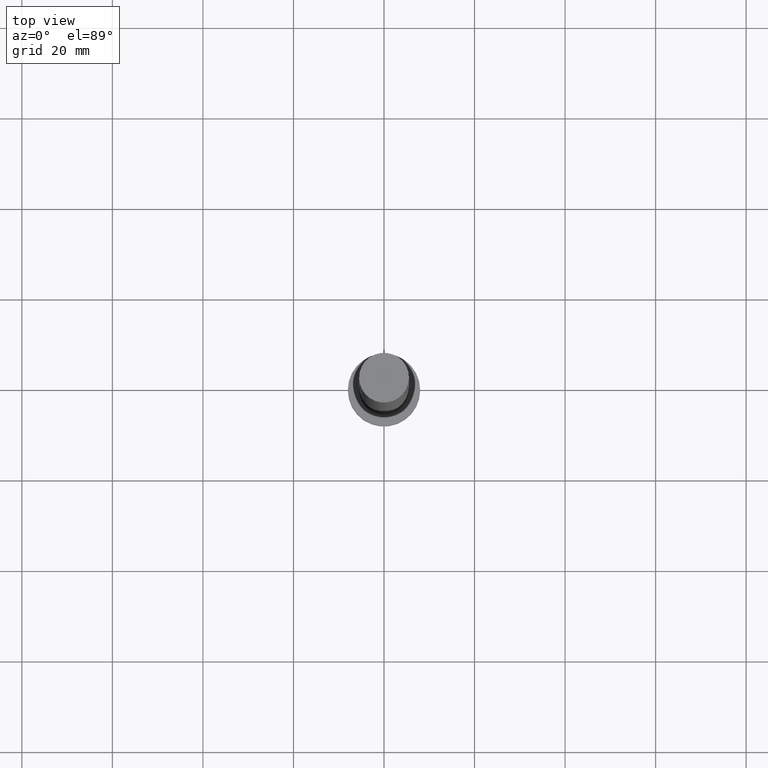
[diagram: clean part render]
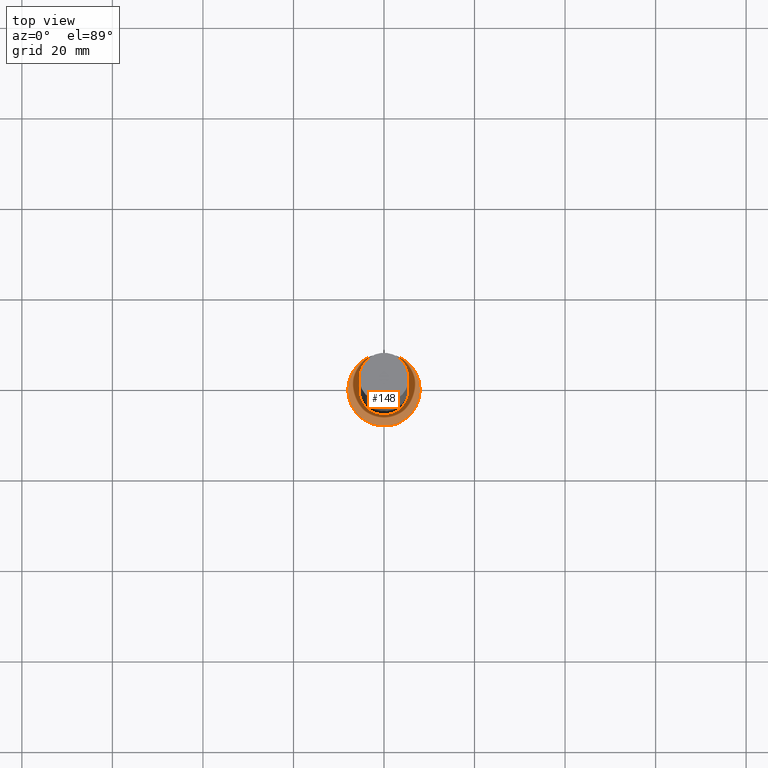
[diagram: same view with one face highlighted and labeled with its STEP entity id]
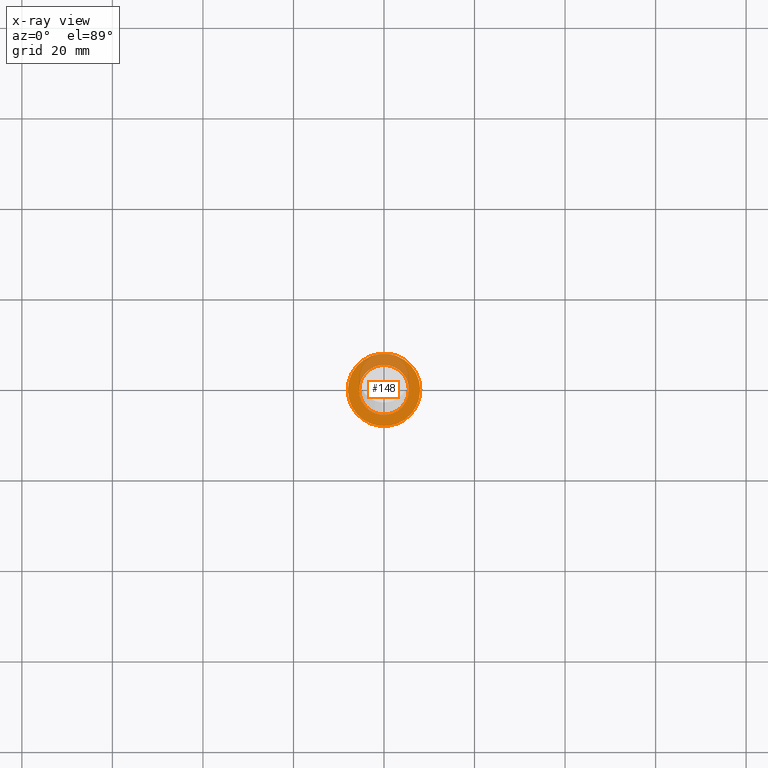
[diagram: x-ray of the same camera — body ghosted, the highlighted face saturated]
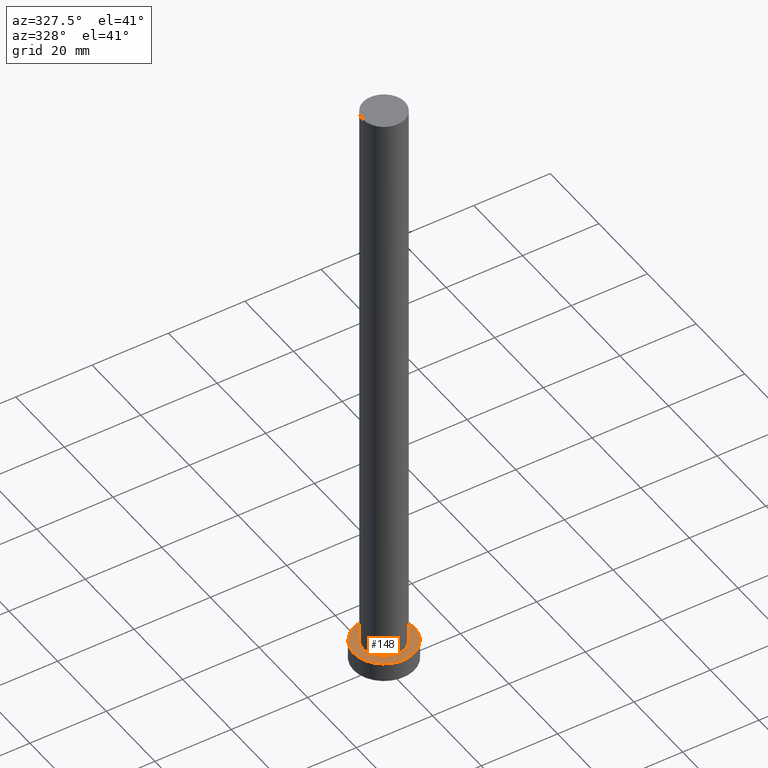
[diagram: same view with one face highlighted and labeled with its STEP entity id]
A machine part, top view. The second image highlights one B-rep face of the part: STEP entity #148.
The next image is the same camera in x-ray: the body ghosted, the highlighted face saturated — about 28% of this face is hidden behind the body in this view.
A second angle (auxiliary view) of the same face is appended — the face is thin or edge-on in the first view.
In plain terms, the highlighted planar face has unit normal (0, 0, 1).
Its self-contained STEP definition (entity closure, byte-faithful):
#18 = EDGE_LOOP ( 'NONE', ( #48, #142 ) ) ;
#20 = FACE_BOUND ( 'NONE', #220, .T. ) ;
#22 = DIRECTION ( 'NONE',  ( 1.000000000000000000, 0.000000000000000000, 0.000000000000000000 ) ) ;
#24 = DIRECTION ( 'NONE',  ( 1.000000000000000000, 0.000000000000000000, -0.000000000000000000 ) ) ;
#25 = CARTESIAN_POINT ( 'NONE',  ( -5.500000000000000000, 0.000000000000000000, 5.000000000000000000 ) ) ;
#32 = EDGE_CURVE ( 'NONE', #165, #217, #195, .T. ) ;
#34 = PLANE ( 'NONE',  #111 ) ;
#36 = DIRECTION ( 'NONE',  ( 1.000000000000000000, 0.000000000000000000, 0.000000000000000000 ) ) ;
#48 = ORIENTED_EDGE ( 'NONE', *, *, #84, .T. ) ;
#69 = CIRCLE ( 'NONE', #204, 5.500000000000000000 ) ;
#71 = VERTEX_POINT ( 'NONE', #206 ) ;
#83 = DIRECTION ( 'NONE',  ( 0.000000000000000000, 0.000000000000000000, 1.000000000000000000 ) ) ;
#84 = EDGE_CURVE ( 'NONE', #127, #71, #229, .T. ) ;
#96 = DIRECTION ( 'NONE',  ( 1.000000000000000000, 0.000000000000000000, 0.000000000000000000 ) ) ;
#102 = AXIS2_PLACEMENT_3D ( 'NONE', #213, #155, #116 ) ;
#111 = AXIS2_PLACEMENT_3D ( 'NONE', #172, #83, #24 ) ;
#116 = DIRECTION ( 'NONE',  ( 1.000000000000000000, 0.000000000000000000, 0.000000000000000000 ) ) ;
#127 = VERTEX_POINT ( 'NONE', #186 ) ;
#142 = ORIENTED_EDGE ( 'NONE', *, *, #192, .T. ) ;
#148 = ADVANCED_FACE ( 'NONE', ( #20, #203 ), #34, .T. ) ;
#155 = DIRECTION ( 'NONE',  ( 0.000000000000000000, 0.000000000000000000, 1.000000000000000000 ) ) ;
#162 = CIRCLE ( 'NONE', #102, 8.000000000000000000 ) ;
#165 = VERTEX_POINT ( 'NONE', #25 ) ;
#166 = DIRECTION ( 'NONE',  ( 0.000000000000000000, 0.000000000000000000, 1.000000000000000000 ) ) ;
#167 = EDGE_CURVE ( 'NONE', #217, #165, #69, .T. ) ;
#169 = CARTESIAN_POINT ( 'NONE',  ( 0.000000000000000000, 0.000000000000000000, 5.000000000000000000 ) ) ;
#172 = CARTESIAN_POINT ( 'NONE',  ( 0.000000000000000000, 0.000000000000000000, 5.000000000000000000 ) ) ;
#173 = DIRECTION ( 'NONE',  ( 0.000000000000000000, 0.000000000000000000, 1.000000000000000000 ) ) ;
#186 = CARTESIAN_POINT ( 'NONE',  ( -8.000000000000000000, 0.000000000000000000, 5.000000000000000000 ) ) ;
#192 = EDGE_CURVE ( 'NONE', #71, #127, #162, .T. ) ;
#193 = CARTESIAN_POINT ( 'NONE',  ( 0.000000000000000000, 0.000000000000000000, 5.000000000000000000 ) ) ;
#195 = CIRCLE ( 'NONE', #202, 5.500000000000000000 ) ;
#200 = ORIENTED_EDGE ( 'NONE', *, *, #167, .F. ) ;
#202 = AXIS2_PLACEMENT_3D ( 'NONE', #169, #209, #36 ) ;
#203 = FACE_OUTER_BOUND ( 'NONE', #18, .T. ) ;
#204 = AXIS2_PLACEMENT_3D ( 'NONE', #193, #173, #22 ) ;
#206 = CARTESIAN_POINT ( 'NONE',  ( 8.000000000000000000, 9.797174393178825657E-16, 5.000000000000000000 ) ) ;
#209 = DIRECTION ( 'NONE',  ( 0.000000000000000000, 0.000000000000000000, 1.000000000000000000 ) ) ;
#213 = CARTESIAN_POINT ( 'NONE',  ( 0.000000000000000000, 0.000000000000000000, 5.000000000000000000 ) ) ;
#217 = VERTEX_POINT ( 'NONE', #233 ) ;
#219 = AXIS2_PLACEMENT_3D ( 'NONE', #243, #166, #96 ) ;
#220 = EDGE_LOOP ( 'NONE', ( #239, #200 ) ) ;
#229 = CIRCLE ( 'NONE', #219, 8.000000000000000000 ) ;
#233 = CARTESIAN_POINT ( 'NONE',  ( 5.500000000000000000, 6.735557395310442023E-16, 5.000000000000000000 ) ) ;
#239 = ORIENTED_EDGE ( 'NONE', *, *, #32, .F. ) ;
#243 = CARTESIAN_POINT ( 'NONE',  ( 0.000000000000000000, 0.000000000000000000, 5.000000000000000000 ) ) ;